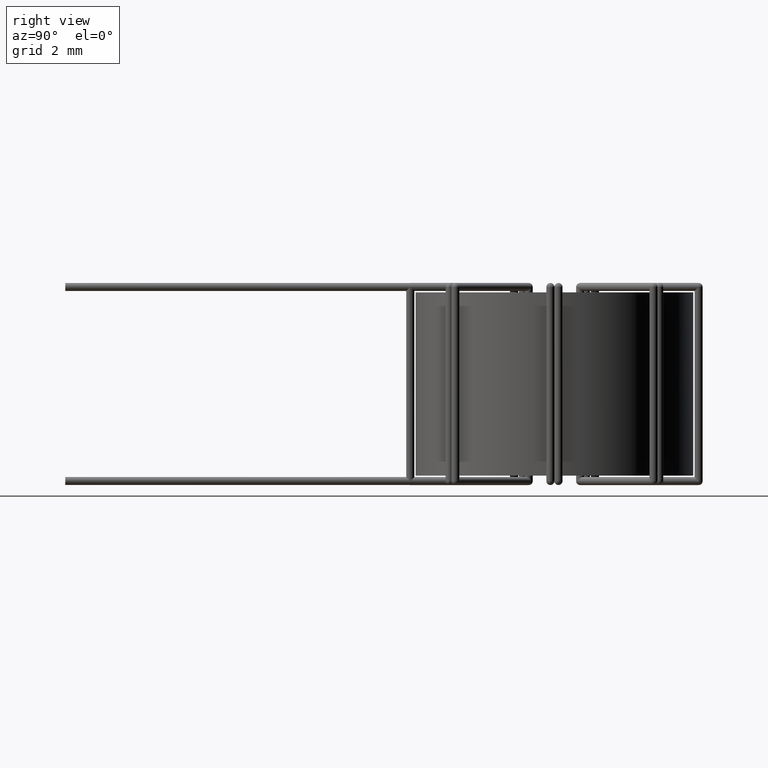
[diagram: clean part render]
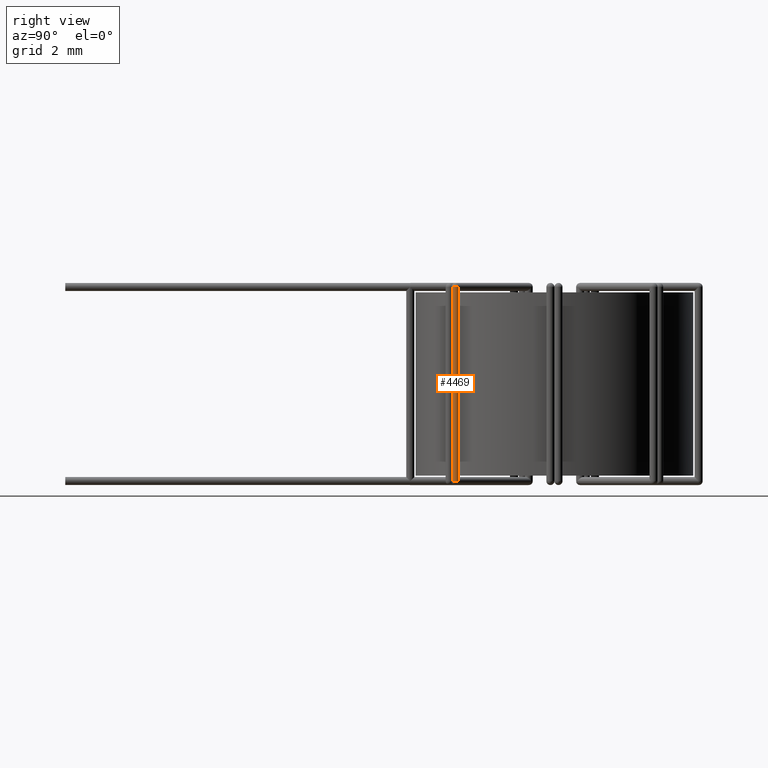
[diagram: same view with one face highlighted and labeled with its STEP entity id]
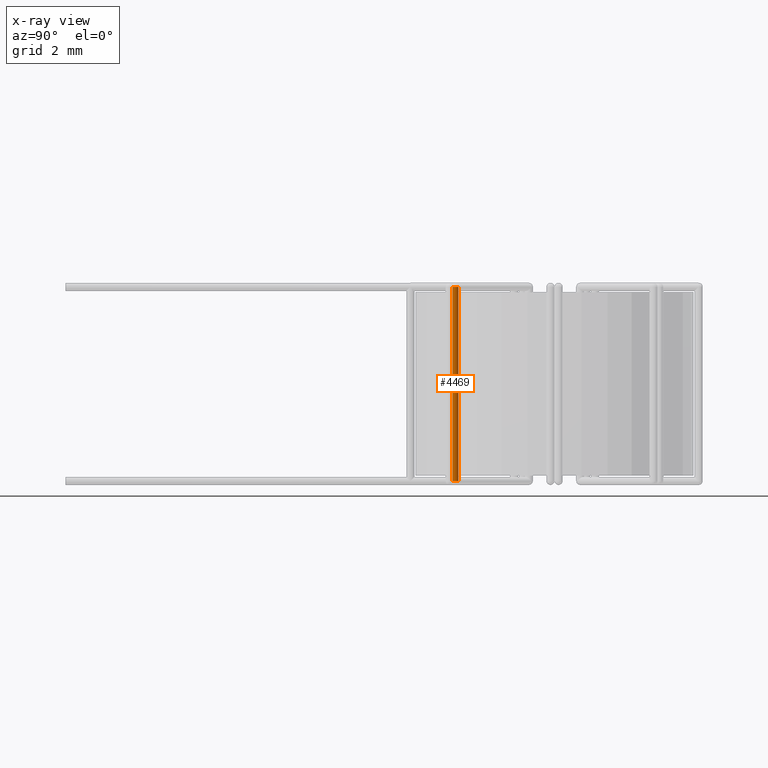
[diagram: x-ray of the same camera — body ghosted, the highlighted face saturated]
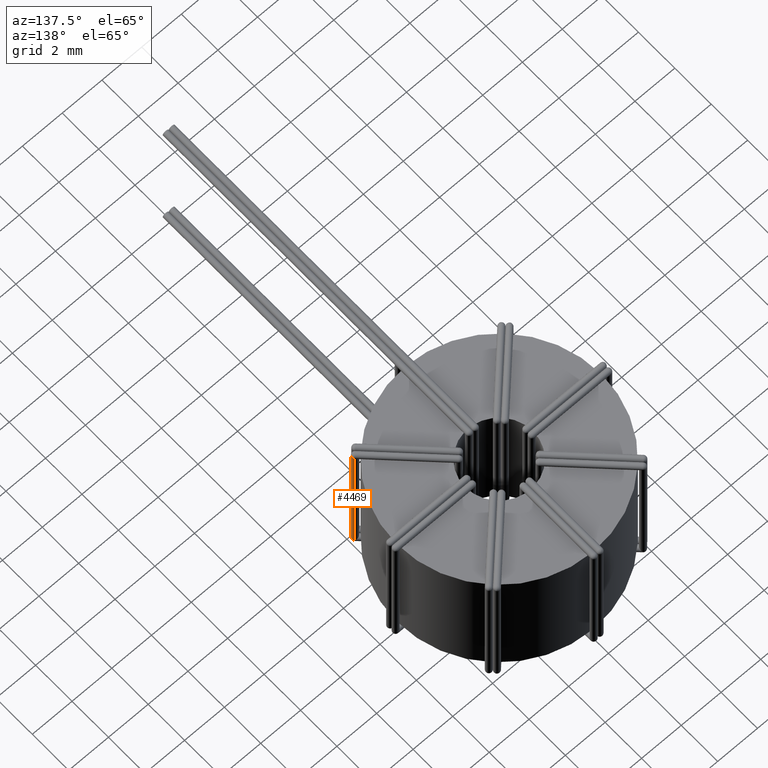
[diagram: same view with one face highlighted and labeled with its STEP entity id]
A machine part, right view. The second image highlights one B-rep face of the part: STEP entity #4469.
The next image is the same camera in x-ray: the body ghosted, the highlighted face saturated — about 0% of this face is hidden behind the body in this view.
A second angle (auxiliary view) of the same face is appended — the face is thin or edge-on in the first view.
In plain terms, the highlighted cylindrical surface (edge-blend (fillet) strip) has radius 0.15 mm, axis along (-0, 0, 1).
Its self-contained STEP definition (entity closure, byte-faithful):
#1283 = LINE ( 'NONE', #15095, #5876 ) ;
#1787 = CARTESIAN_POINT ( 'NONE',  ( 3.995153313704012700, -3.783021279348008000, 7.000000000000000000 ) ) ;
#2478 = ORIENTED_EDGE ( 'NONE', *, *, #6497, .T. ) ;
#3068 = VERTEX_POINT ( 'NONE', #13067 ) ;
#3796 = DIRECTION ( 'NONE',  ( -0.7071067811865517900, 0.7071067811865431300, 0.0000000000000000000 ) ) ;
#3824 = AXIS2_PLACEMENT_3D ( 'NONE', #10127, #15023, #8665 ) ;
#4153 = VERTEX_POINT ( 'NONE', #7178 ) ;
#4411 = CIRCLE ( 'NONE', #3824, 0.1499999999999999100 ) ;
#4469 = ADVANCED_FACE ( 'NONE', ( #9822 ), #13105, .T. ) ;
#4776 = CARTESIAN_POINT ( 'NONE',  ( 3.889087296526030800, -3.676955262170027000, -0.3499999999999995300 ) ) ;
#5255 = VECTOR ( 'NONE', #10244, 1000.000000000000000 ) ;
#5379 = CARTESIAN_POINT ( 'NONE',  ( 3.995153313704012700, -3.570889244992044200, 6.187180397650613300E-016 ) ) ;
#5876 = VECTOR ( 'NONE', #8937, 1000.000000000000000 ) ;
#6497 = EDGE_CURVE ( 'NONE', #14918, #4153, #1283, .T. ) ;
#6563 = CARTESIAN_POINT ( 'NONE',  ( 3.995153313704012700, -3.570889244992044200, -0.1999999999999995400 ) ) ;
#7178 = CARTESIAN_POINT ( 'NONE',  ( 3.995153313704013600, -3.783021279348008500, -0.1999999999999995100 ) ) ;
#7289 = ORIENTED_EDGE ( 'NONE', *, *, #15680, .F. ) ;
#8026 = ORIENTED_EDGE ( 'NONE', *, *, #14824, .F. ) ;
#8665 = DIRECTION ( 'NONE',  ( -0.7071067811865517900, 0.7071067811865431300, 0.0000000000000000000 ) ) ;
#8937 = DIRECTION ( 'NONE',  ( 8.177564888978038500E-017, -8.177564888977952300E-017, -1.000000000000000000 ) ) ;
#9419 = CIRCLE ( 'NONE', #10266, 0.1499999999999999100 ) ;
#9715 = VERTEX_POINT ( 'NONE', #6563 ) ;
#9822 = FACE_OUTER_BOUND ( 'NONE', #11466, .T. ) ;
#10127 = CARTESIAN_POINT ( 'NONE',  ( 3.889087296526029900, -3.676955262170026600, 7.000000000000000000 ) ) ;
#10244 = DIRECTION ( 'NONE',  ( 8.177564888978038500E-017, -8.177564888977952300E-017, -1.000000000000000000 ) ) ;
#10266 = AXIS2_PLACEMENT_3D ( 'NONE', #11686, #12940, #12988 ) ;
#11466 = EDGE_LOOP ( 'NONE', ( #7289, #2478, #12270, #8026 ) ) ;
#11686 = CARTESIAN_POINT ( 'NONE',  ( 3.889087296526030800, -3.676955262170027000, -0.1999999999999995400 ) ) ;
#12270 = ORIENTED_EDGE ( 'NONE', *, *, #15350, .F. ) ;
#12940 = DIRECTION ( 'NONE',  ( 1.277744513902818900E-016, -1.277744513902805400E-016, -1.000000000000000000 ) ) ;
#12941 = LINE ( 'NONE', #5379, #5255 ) ;
#12988 = DIRECTION ( 'NONE',  ( 0.7071067811865517900, -0.7071067811865431300, 1.807003620809175100E-016 ) ) ;
#13067 = CARTESIAN_POINT ( 'NONE',  ( 3.995153313704011800, -3.570889244992043700, 7.000000000000000000 ) ) ;
#13105 = CYLINDRICAL_SURFACE ( 'NONE', #15718, 0.1499999999999999100 ) ;
#14641 = DIRECTION ( 'NONE',  ( -8.177564888978038500E-017, 8.177564888977952300E-017, 1.000000000000000000 ) ) ;
#14824 = EDGE_CURVE ( 'NONE', #3068, #9715, #12941, .T. ) ;
#14918 = VERTEX_POINT ( 'NONE', #1787 ) ;
#15023 = DIRECTION ( 'NONE',  ( 0.0000000000000000000, 0.0000000000000000000, 1.000000000000000000 ) ) ;
#15095 = CARTESIAN_POINT ( 'NONE',  ( 3.995153313704013600, -3.783021279348008500, -0.3499999999999995300 ) ) ;
#15350 = EDGE_CURVE ( 'NONE', #9715, #4153, #9419, .T. ) ;
#15680 = EDGE_CURVE ( 'NONE', #14918, #3068, #4411, .T. ) ;
#15718 = AXIS2_PLACEMENT_3D ( 'NONE', #4776, #14641, #3796 ) ;